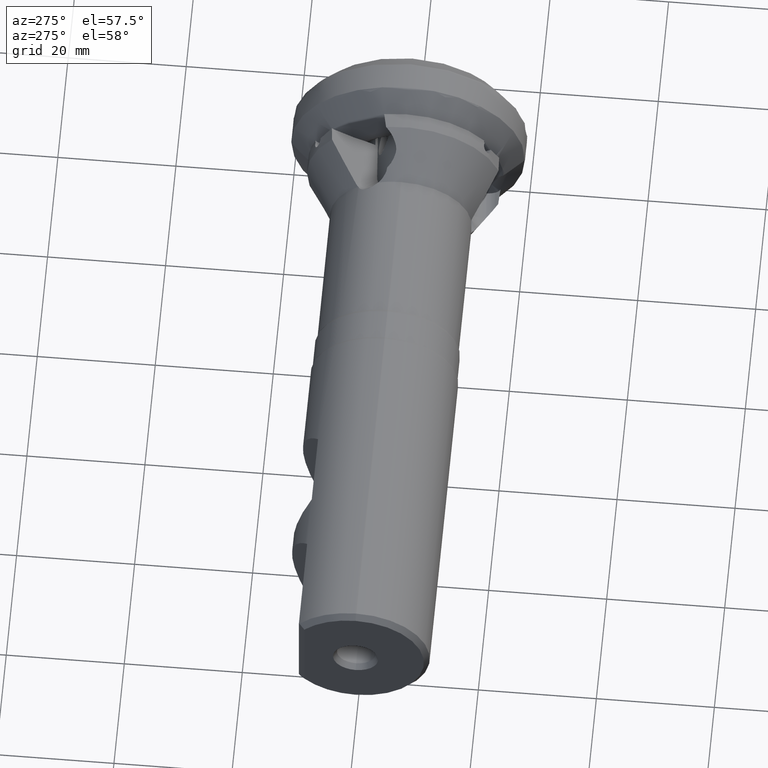
[diagram: clean part render]
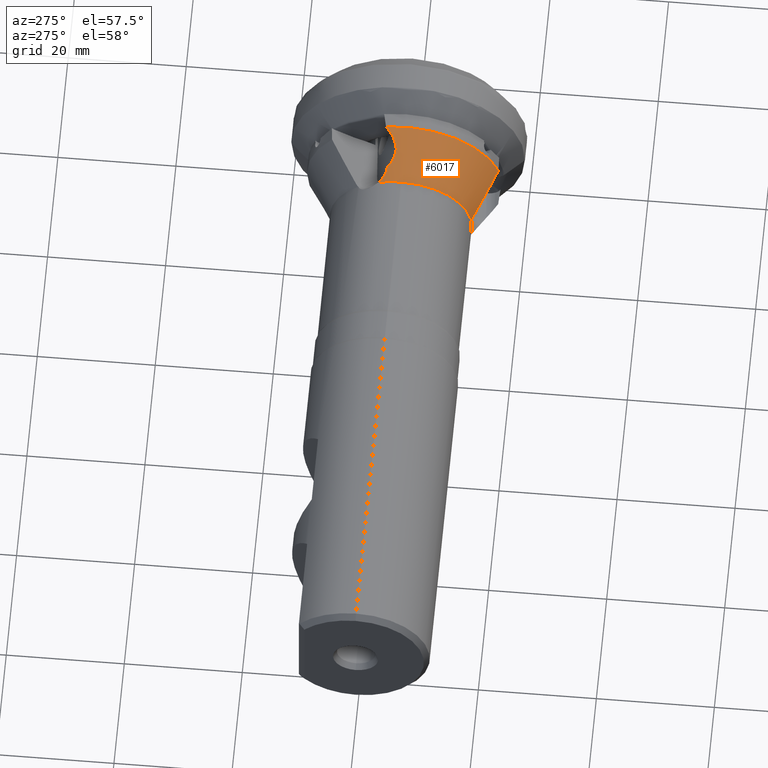
[diagram: same view with one face highlighted and labeled with its STEP entity id]
A machine part, auxiliary view. The second image highlights one B-rep face of the part: STEP entity #6017.
In plain terms, the highlighted conical surface has half-angle 30 deg.
Its self-contained STEP definition (entity closure, byte-faithful):
#36 = CARTESIAN_POINT ( 'NONE',  ( -15.74809823161511500, 1.366631365788179700, 15.10356801748866900 ) ) ;
#75 = CARTESIAN_POINT ( 'NONE',  ( -20.93877732875622800, -12.04470126608064200, 1.729980904138006100 ) ) ;
#101 = CARTESIAN_POINT ( 'NONE',  ( -21.22999999999233000, -11.90783212673240000, 1.484430544538777300 ) ) ;
#114 = ORIENTED_EDGE ( 'NONE', *, *, #4971, .T. ) ;
#124 = EDGE_CURVE ( 'NONE', #6302, #2269, #4985, .T. ) ;
#194 = ORIENTED_EDGE ( 'NONE', *, *, #5814, .F. ) ;
#248 = B_SPLINE_CURVE_WITH_KNOTS ( 'NONE', 3,
 ( #6235, #3040, #3579, #391, #4091, #933 ),
 .UNSPECIFIED., .F., .F.,
 ( 4, 2, 4 ),
 ( 0.0009302954277563412400, 0.002089056261637456200, 0.003247817095518570500 ),
 .UNSPECIFIED. ) ;
#373 = CARTESIAN_POINT ( 'NONE',  ( -13.17600000000000700, 0.0000000000000000000, 0.0000000000000000000 ) ) ;
#391 = CARTESIAN_POINT ( 'NONE',  ( -14.29565228632076700, 2.185221936156756900, 15.85470337501335400 ) ) ;
#474 = CARTESIAN_POINT ( 'NONE',  ( -16.95983074412414000, 1.262625603996551300, 14.41018437353953500 ) ) ;
#513 = DIRECTION ( 'NONE',  ( 1.000000000000000000, -0.0000000000000000000, -0.0000000000000000000 ) ) ;
#588 = VERTEX_POINT ( 'NONE', #5402 ) ;
#637 = CIRCLE ( 'NONE', #1751, 11.99999999999999500 ) ;
#694 = CARTESIAN_POINT ( 'NONE',  ( -13.74279684287580500, 2.684382428926169100, 16.10051324615460900 ) ) ;
#772 = B_SPLINE_CURVE_WITH_KNOTS ( 'NONE', 3,
 ( #2392, #6643, #805, #4513, #1345, #5061, #1873, #5593 ),
 .UNSPECIFIED., .F., .F.,
 ( 4, 2, 2, 4 ),
 ( 1.434120406356284200E-016, 0.001483257946147695100, 0.002224886919221472500, 0.002966515892295249700 ),
 .UNSPECIFIED. ) ;
#805 = CARTESIAN_POINT ( 'NONE',  ( -20.68000981247846300, 3.155492102662920600, 11.90989620003538700 ) ) ;
#933 = CARTESIAN_POINT ( 'NONE',  ( -13.74279684287580500, 2.684382428926169100, 16.10051324615460900 ) ) ;
#950 = CARTESIAN_POINT ( 'NONE',  ( -14.45507943838224400, -15.22952976388569200, 4.620933700017952900 ) ) ;
#957 = CARTESIAN_POINT ( 'NONE',  ( -21.22999999999233000, -11.90783212673240000, 1.484430544538777300 ) ) ;
#1027 = VERTEX_POINT ( 'NONE', #4429 ) ;
#1030 = AXIS2_PLACEMENT_3D ( 'NONE', #3709, #513, #4226 ) ;
#1062 = DIRECTION ( 'NONE',  ( 1.000000000000000000, -0.0000000000000000000, -0.0000000000000000000 ) ) ;
#1279 = VERTEX_POINT ( 'NONE', #957 ) ;
#1345 = CARTESIAN_POINT ( 'NONE',  ( -19.96547441999462800, 2.714864459762068800, 12.43758246399670900 ) ) ;
#1422 = CARTESIAN_POINT ( 'NONE',  ( -13.55589862277089700, 2.872166869372041000, 16.17860031850778300 ) ) ;
#1547 = CARTESIAN_POINT ( 'NONE',  ( -18.52049868956224900, 1.936112452557385200, 13.42764928973220200 ) ) ;
#1751 = AXIS2_PLACEMENT_3D ( 'NONE', #4215, #1062, #4761 ) ;
#1873 = CARTESIAN_POINT ( 'NONE',  ( -19.35946117575250000, 2.533322774708793200, 12.83231174412452800 ) ) ;
#2076 = CARTESIAN_POINT ( 'NONE',  ( -19.14843200605529500, 2.533263002125808200, 12.95646873339590700 ) ) ;
#2114 = CARTESIAN_POINT ( 'NONE',  ( -15.51637310254267500, 1.471127406134036500, 15.22788295443514700 ) ) ;
#2123 = CARTESIAN_POINT ( 'NONE',  ( -13.17600000000000700, 0.0000000000000000000, 0.0000000000000000000 ) ) ;
#2174 = ORIENTED_EDGE ( 'NONE', *, *, #3062, .F. ) ;
#2207 = CARTESIAN_POINT ( 'NONE',  ( -20.77027595980560900, -12.13151795689085500, 1.807449380412195600 ) ) ;
#2262 = ORIENTED_EDGE ( 'NONE', *, *, #2734, .F. ) ;
#2269 = VERTEX_POINT ( 'NONE', #4579 ) ;
#2289 = ORIENTED_EDGE ( 'NONE', *, *, #2975, .T. ) ;
#2297 = VERTEX_POINT ( 'NONE', #6363 ) ;
#2388 = CARTESIAN_POINT ( 'NONE',  ( -18.26344096074265300, -13.39842509908019400, 2.945714204996329000 ) ) ;
#2392 = CARTESIAN_POINT ( 'NONE',  ( -21.22999999999650800, 3.793877307735805900, 11.38448483568308900 ) ) ;
#2456 = ORIENTED_EDGE ( 'NONE', *, *, #6765, .T. ) ;
#2536 = CARTESIAN_POINT ( 'NONE',  ( -13.17600000000000700, 3.243089053792642200, 16.33110141384132800 ) ) ;
#2658 = DIRECTION ( 'NONE',  ( 1.000000000000000000, -0.0000000000000000000, -0.0000000000000000000 ) ) ;
#2659 = CARTESIAN_POINT ( 'NONE',  ( -16.95983074412414000, 1.262625603996551300, 14.41018437353953500 ) ) ;
#2716 = B_SPLINE_CURVE_WITH_KNOTS ( 'NONE', 3,
 ( #474, #3660, #4723, #1547, #5259, #2076 ),
 .UNSPECIFIED., .F., .F.,
 ( 4, 2, 4 ),
 ( 1.788112030672749000E-018, 0.001478344117500283500, 0.002956688235000565300 ),
 .UNSPECIFIED. ) ;
#2734 = EDGE_CURVE ( 'NONE', #2269, #5341, #6904, .T. ) ;
#2975 = EDGE_CURVE ( 'NONE', #2297, #1279, #3208, .T. ) ;
#3040 = CARTESIAN_POINT ( 'NONE',  ( -15.19961793384046800, 1.613967593648233400, 15.39781445466692100 ) ) ;
#3062 = EDGE_CURVE ( 'NONE', #588, #6819, #6258, .T. ) ;
#3126 = ORIENTED_EDGE ( 'NONE', *, *, #5777, .F. ) ;
#3166 = FACE_OUTER_BOUND ( 'NONE', #5129, .T. ) ;
#3177 = CARTESIAN_POINT ( 'NONE',  ( -16.72038457883488100, 1.212297623688913400, 14.55336872100324900 ) ) ;
#3208 = CIRCLE ( 'NONE', #1030, 11.99999999999999500 ) ;
#3240 = CARTESIAN_POINT ( 'NONE',  ( -15.98530327373469700, 1.289890530672597800, 14.97260595732975700 ) ) ;
#3307 = CARTESIAN_POINT ( 'NONE',  ( -21.09217309030309200, -11.97087074938310600, 1.622021221429522400 ) ) ;
#3403 = CARTESIAN_POINT ( 'NONE',  ( -19.52317254173990300, -12.77406105626649200, 2.380804968889305200 ) ) ;
#3480 = VERTEX_POINT ( 'NONE', #4322 ) ;
#3503 = EDGE_CURVE ( 'NONE', #5341, #1279, #5253, .T. ) ;
#3579 = CARTESIAN_POINT ( 'NONE',  ( -14.89177235037752700, 1.783252397903028800, 15.55857746002020600 ) ) ;
#3660 = CARTESIAN_POINT ( 'NONE',  ( -17.37676110448518300, 1.350258090992350300, 14.16086778283953500 ) ) ;
#3709 = CARTESIAN_POINT ( 'NONE',  ( -21.23000000000001100, 0.0000000000000000000, 0.0000000000000000000 ) ) ;
#3773 = CARTESIAN_POINT ( 'NONE',  ( -15.51637310254267500, 1.471127406134036500, 15.22788295443514700 ) ) ;
#3869 = ORIENTED_EDGE ( 'NONE', *, *, #5632, .F. ) ;
#4079 = DIRECTION ( 'NONE',  ( 0.0000000000000000000, 0.0000000000000000000, -1.000000000000000000 ) ) ;
#4091 = CARTESIAN_POINT ( 'NONE',  ( -14.00584386524081100, 2.420088109386691900, 15.99061079841500400 ) ) ;
#4112 = CARTESIAN_POINT ( 'NONE',  ( -13.17600000000000900, -15.82604131575034100, 5.172902113143376100 ) ) ;
#4164 = CARTESIAN_POINT ( 'NONE',  ( -20.77027595980560900, -12.13151795689085500, 1.807449380412195600 ) ) ;
#4215 = CARTESIAN_POINT ( 'NONE',  ( -21.23000000000001100, 0.0000000000000000000, 0.0000000000000000000 ) ) ;
#4226 = DIRECTION ( 'NONE',  ( 0.0000000000000000000, 0.0000000000000000000, -1.000000000000000000 ) ) ;
#4322 = CARTESIAN_POINT ( 'NONE',  ( -19.14843200605529500, 2.533263002125808200, 12.95646873339590700 ) ) ;
#4429 = CARTESIAN_POINT ( 'NONE',  ( -21.22999999999650800, 3.793877307735805900, 11.38448483568308900 ) ) ;
#4466 = AXIS2_PLACEMENT_3D ( 'NONE', #373, #6775, #4079 ) ;
#4513 = CARTESIAN_POINT ( 'NONE',  ( -20.15300479942943200, 2.811504852195267500, 12.30551442548729900 ) ) ;
#4579 = CARTESIAN_POINT ( 'NONE',  ( -13.17600000000000900, -15.82604131575034100, 5.172902113143376100 ) ) ;
#4635 = CARTESIAN_POINT ( 'NONE',  ( -13.74279684287580500, 2.684382428926169100, 16.10051324615460900 ) ) ;
#4723 = CARTESIAN_POINT ( 'NONE',  ( -17.77700534866228600, 1.507675091987510400, 13.91426164007350200 ) ) ;
#4761 = DIRECTION ( 'NONE',  ( 0.0000000000000000000, 0.0000000000000000000, -1.000000000000000000 ) ) ;
#4766 = ORIENTED_EDGE ( 'NONE', *, *, #3503, .F. ) ;
#4769 = DIRECTION ( 'NONE',  ( 0.0000000000000000000, 0.0000000000000000000, -1.000000000000000000 ) ) ;
#4868 = AXIS2_PLACEMENT_3D ( 'NONE', #2123, #2658, #4769 ) ;
#4971 = EDGE_CURVE ( 'NONE', #588, #3480, #2716, .T. ) ;
#4985 = CIRCLE ( 'NONE', #4466, 16.64999999999999500 ) ;
#5061 = CARTESIAN_POINT ( 'NONE',  ( -19.56899622333031600, 2.575572893914089200, 12.70081880470011600 ) ) ;
#5129 = EDGE_LOOP ( 'NONE', ( #194, #3126, #2174, #114, #3869, #2456, #2289, #4766, #2262, #5898 ) ) ;
#5253 = B_SPLINE_CURVE_WITH_KNOTS ( 'NONE', 3,
 ( #2207, #75, #3307, #101 ),
 .UNSPECIFIED., .F., .F.,
 ( 4, 4 ),
 ( 4.091337135425211100E-018, 0.0006047501236612491400 ),
 .UNSPECIFIED. ) ;
#5259 = CARTESIAN_POINT ( 'NONE',  ( -18.86243813092658100, 2.206429804957541500, 13.18861743605786300 ) ) ;
#5341 = VERTEX_POINT ( 'NONE', #4164 ) ;
#5402 = CARTESIAN_POINT ( 'NONE',  ( -16.95983074412414000, 1.262625603996551300, 14.41018437353953500 ) ) ;
#5593 = CARTESIAN_POINT ( 'NONE',  ( -19.14843200605529500, 2.533263002125808200, 12.95646873339590700 ) ) ;
#5632 = EDGE_CURVE ( 'NONE', #1027, #3480, #772, .T. ) ;
#5719 = CARTESIAN_POINT ( 'NONE',  ( -13.36689642738400100, 3.058349172480928900, 16.25542095790643100 ) ) ;
#5777 = EDGE_CURVE ( 'NONE', #6819, #6298, #248, .T. ) ;
#5814 = EDGE_CURVE ( 'NONE', #6298, #6302, #5928, .T. ) ;
#5898 = ORIENTED_EDGE ( 'NONE', *, *, #124, .F. ) ;
#5928 = B_SPLINE_CURVE_WITH_KNOTS ( 'NONE', 3,
 ( #4635, #1422, #5719, #2536 ),
 .UNSPECIFIED., .F., .F.,
 ( 4, 4 ),
 ( 0.0001776024659337435600, 0.001006203270613372400 ),
 .UNSPECIFIED. ) ;
#6017 = ADVANCED_FACE ( 'NONE', ( #3166 ), #6891, .T. ) ;
#6104 = CARTESIAN_POINT ( 'NONE',  ( -15.72947118666122400, -14.62626997920254000, 4.065829923290667800 ) ) ;
#6235 = CARTESIAN_POINT ( 'NONE',  ( -15.51637310254267500, 1.471127406134036500, 15.22788295443514700 ) ) ;
#6258 = B_SPLINE_CURVE_WITH_KNOTS ( 'NONE', 3,
 ( #2659, #3177, #6427, #3240, #36, #3773 ),
 .UNSPECIFIED., .F., .F.,
 ( 4, 2, 4 ),
 ( 0.0000000000000000000, 0.0008471933625931623000, 0.001694386725186324600 ),
 .UNSPECIFIED. ) ;
#6298 = VERTEX_POINT ( 'NONE', #694 ) ;
#6302 = VERTEX_POINT ( 'NONE', #6539 ) ;
#6363 = CARTESIAN_POINT ( 'NONE',  ( -21.23000000000001100, 1.469576158976823400E-015, 11.99999999999999500 ) ) ;
#6427 = CARTESIAN_POINT ( 'NONE',  ( -16.47353767324189300, 1.212007840723707200, 14.69628958974290700 ) ) ;
#6539 = CARTESIAN_POINT ( 'NONE',  ( -13.17600000000000700, 3.243089053792642200, 16.33110141384132800 ) ) ;
#6587 = CARTESIAN_POINT ( 'NONE',  ( -20.77027595980560900, -12.13151795689085500, 1.807449380412195600 ) ) ;
#6643 = CARTESIAN_POINT ( 'NONE',  ( -20.98313058596460900, 3.453739073995833600, 11.64807268711071600 ) ) ;
#6765 = EDGE_CURVE ( 'NONE', #1027, #2297, #637, .T. ) ;
#6775 = DIRECTION ( 'NONE',  ( 1.000000000000000000, -0.0000000000000000000, -0.0000000000000000000 ) ) ;
#6819 = VERTEX_POINT ( 'NONE', #2114 ) ;
#6891 = CONICAL_SURFACE ( 'NONE', #4868, 16.64999999999999500, 0.5236007248089266100 ) ;
#6904 = B_SPLINE_CURVE_WITH_KNOTS ( 'NONE', 3,
 ( #4112, #950, #6104, #2388, #3403, #6587 ),
 .UNSPECIFIED., .F., .F.,
 ( 4, 2, 4 ),
 ( 2.369184954897710500E-007, 0.004545801453026261800, 0.009091365987557035000 ),
 .UNSPECIFIED. ) ;